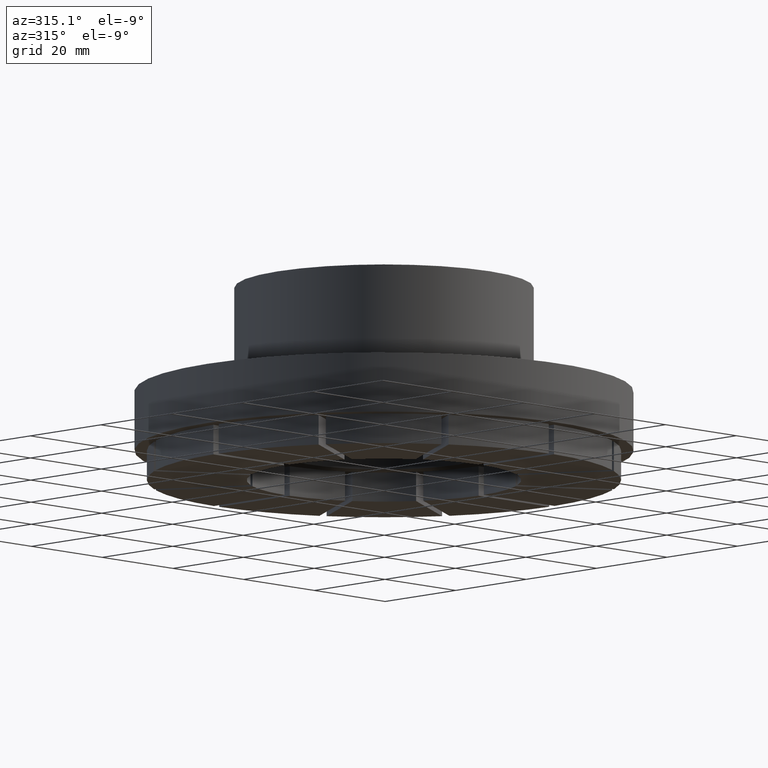
[diagram: clean part render]
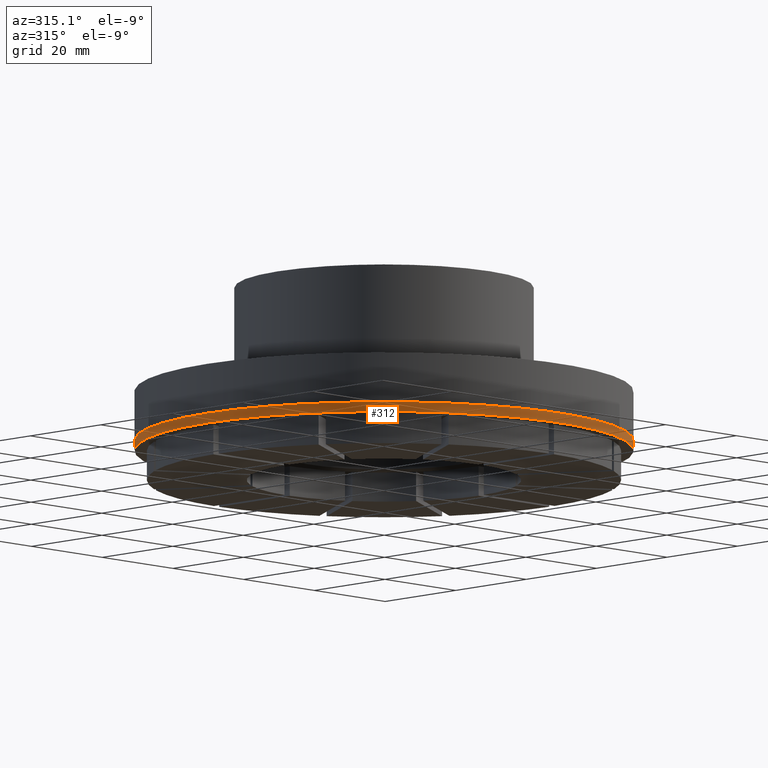
[diagram: same view with one face highlighted and labeled with its STEP entity id]
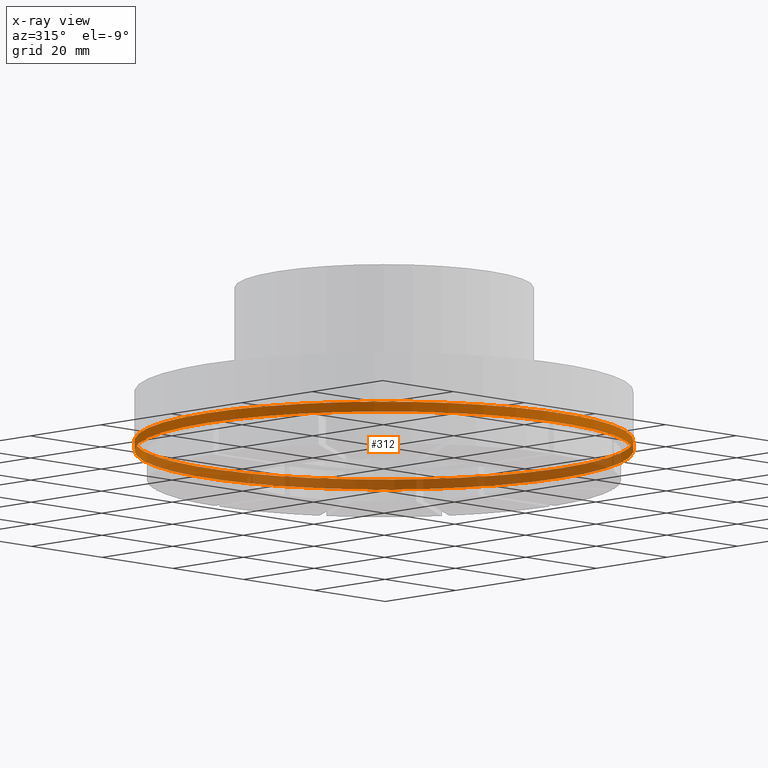
[diagram: x-ray of the same camera — body ghosted, the highlighted face saturated]
A machine part, auxiliary view. The second image highlights one B-rep face of the part: STEP entity #312.
The next image is the same camera in x-ray: the body ghosted, the highlighted face saturated — about 48% of this face is hidden behind the body in this view.
In plain terms, the highlighted cylindrical surface (bore or boss wall) has radius 50 mm, axis along (-0, 0, -1).
Its self-contained STEP definition (entity closure, byte-faithful):
#312 = ADVANCED_FACE( '', ( #477, #478 ), #479, .T. );
#477 = FACE_OUTER_BOUND( '', #689, .T. );
#478 = FACE_OUTER_BOUND( '', #690, .T. );
#479 = CYLINDRICAL_SURFACE( '', #691, 50.0000000000000 );
#689 = EDGE_LOOP( '', ( #992 ) );
#690 = EDGE_LOOP( '', ( #993 ) );
#691 = AXIS2_PLACEMENT_3D( '', #994, #995, #996 );
#992 = ORIENTED_EDGE( '', *, *, #1558, .T. );
#993 = ORIENTED_EDGE( '', *, *, #1584, .F. );
#994 = CARTESIAN_POINT( '', ( 0.000000000000000, 0.000000000000000, 6.00000000000000 ) );
#995 = DIRECTION( '', ( -0.000000000000000, 0.000000000000000, -1.00000000000000 ) );
#996 = DIRECTION( '', ( 1.00000000000000, 0.000000000000000, 0.000000000000000 ) );
#1558 = EDGE_CURVE( '', #1809, #1809, #1810, .T. );
#1584 = EDGE_CURVE( '', #1861, #1861, #1862, .T. );
#1809 = VERTEX_POINT( '', #2306 );
#1810 = CIRCLE( '', #2307, 50.0000000000000 );
#1861 = VERTEX_POINT( '', #2370 );
#1862 = CIRCLE( '', #2371, 50.0000000000000 );
#2306 = CARTESIAN_POINT( '', ( 50.0000000000000, 0.000000000000000, 6.00000000000000 ) );
#2307 = AXIS2_PLACEMENT_3D( '', #2791, #2792, #2793 );
#2370 = CARTESIAN_POINT( '', ( 50.0000000000000, 0.000000000000000, 8.00000000000000 ) );
#2371 = AXIS2_PLACEMENT_3D( '', #2845, #2846, #2847 );
#2791 = CARTESIAN_POINT( '', ( 0.000000000000000, 0.000000000000000, 6.00000000000000 ) );
#2792 = DIRECTION( '', ( 0.000000000000000, 0.000000000000000, 1.00000000000000 ) );
#2793 = DIRECTION( '', ( 1.00000000000000, 0.000000000000000, 0.000000000000000 ) );
#2845 = CARTESIAN_POINT( '', ( 0.000000000000000, 0.000000000000000, 8.00000000000000 ) );
#2846 = DIRECTION( '', ( 0.000000000000000, 0.000000000000000, 1.00000000000000 ) );
#2847 = DIRECTION( '', ( 1.00000000000000, 0.000000000000000, 0.000000000000000 ) );